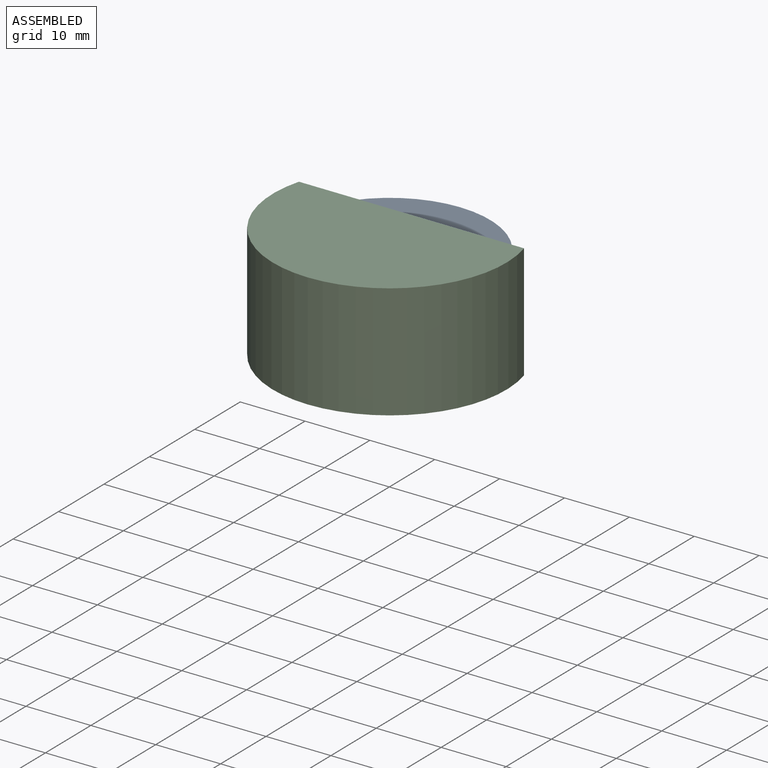
[diagram: assembled view]
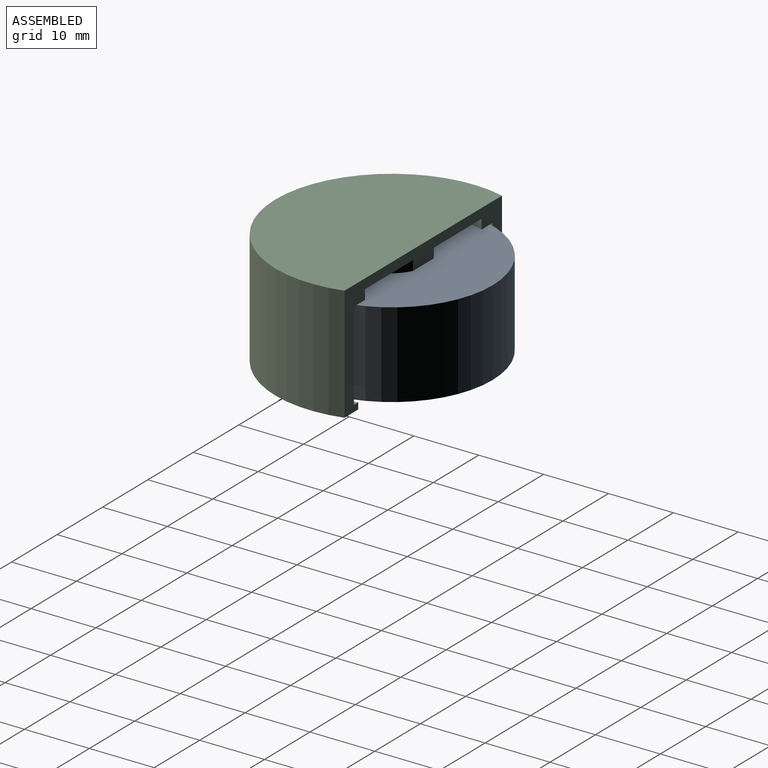
[diagram: assembled view, second angle]
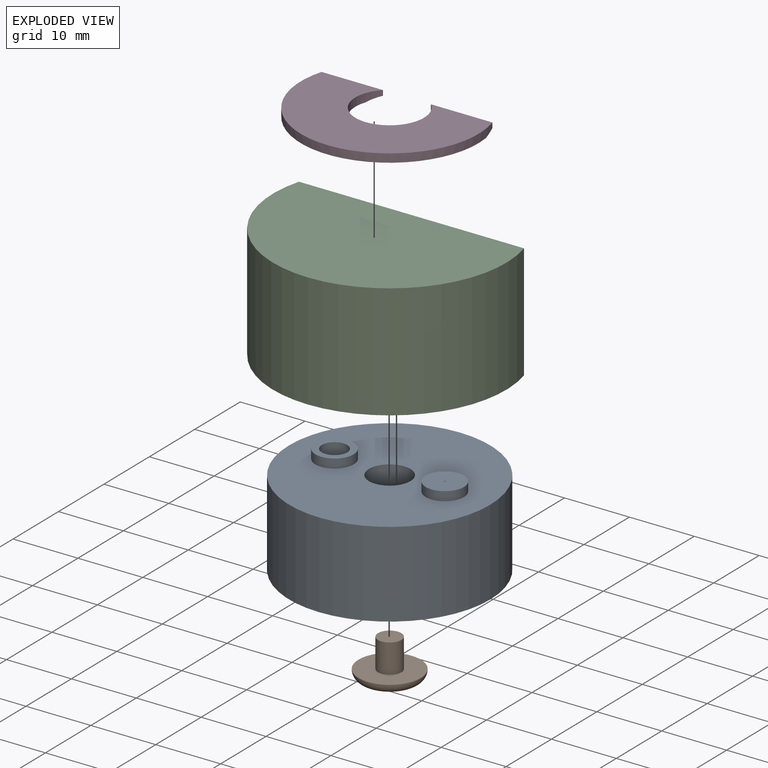
[diagram: exploded view]
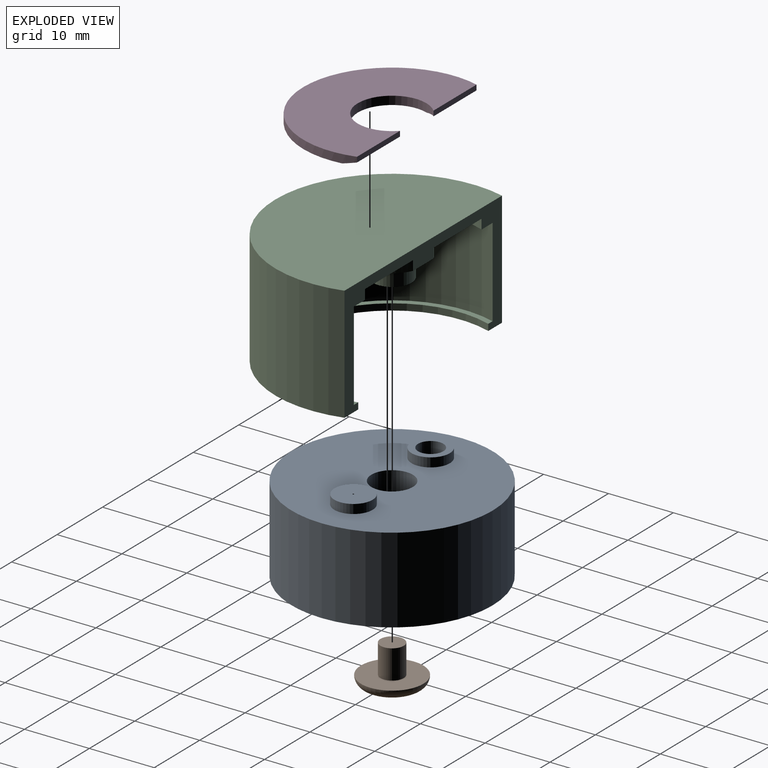
[diagram: exploded view, second angle]
ASSEMBLY  parts=4 mates=3
PART A: 14 faces, bbox 31x31x14.6 mm
  f0: cylinder r=1.95mm len=3.9mm, axis (0,0,1), area 35.5mm2, adj f10,f13
  f1: plane 31x31mm, normal (0,0,-1), area 223.8mm2, adj f2,f12
  f2: cylinder r=15.5mm len=31mm, axis (0,0,-1), area 1285.5mm2, adj f1,f3
  f3: plane 31x31mm, normal (0,0,1), area 667.9mm2, adj f2,f4,f5,f7
  f4: cylinder r=3.2mm len=6.4mm, axis (0,0,1), area 60.3mm2, adj f3,f13
  f5: cylinder r=2.95mm len=5.9mm, axis (0,0,-1), area 25.9mm2, adj f3,f6
  f6: plane 5.9x5.9mm, normal (0,0,1), area 15.4mm2, adj f5,f9
  f7: cylinder r=2.95mm len=5.9mm, axis (0,0,-1), area 25.9mm2, adj f3,f8
  f8: plane 5.9x5.9mm, normal (0,0,1), area 27.3mm2, adj f7,f11
  f9: cylinder r=1.95mm len=4.4mm, axis (0,0,1), area 53.9mm2, adj f6,f13
  f10: plane 3.9x3.9mm, normal (0,0,-1), area 11.9mm2, adj f0,f11
  f11: cylinder r=0.12mm len=1.5mm, axis (0,0,1), area 1.2mm2, adj f8,f10
  f12: cylinder r=13mm len=26mm, axis (0,0,-1), area 833.2mm2, adj f1,f13
  f13: plane 26x26mm, normal (0,0,-1), area 474.9mm2, adj f0,f4,f9,f12
PART B: 5 faces, bbox 10.4x10.4x6 mm
  f0: cylinder r=1.8mm len=4.5mm, axis (0,0,-1), area 50.9mm2, adj f1,f3
  f1: plane 3.6x3.6mm, normal (0,0,1), area 10.2mm2, adj f0
  f2: plane 6.6x6.6mm, normal (0,0,-1), area 34.2mm2, adj f4
  f3: plane 9.6x9.6mm, normal (0,0,1), area 62.2mm2, adj f0,f4
  f4: torus R=3.3mm, axis (0,0,-1), area 63mm2, adj f2,f3
PART C: 20 faces, bbox 22.8x36x17.7 mm
  f0: cylinder r=13.7mm len=27.4mm, axis (0,0,-1), area 104.6mm2, adj f9,f10,f13,f14,f15,f16,f17
  f1: cylinder r=5.3mm len=10.6mm, axis (0,0,-1), area 55.6mm2, adj f10,f11,f13,f14,f15,f16,f17
  f2: plane 36x22.8mm, normal (0,0,1), area 679.7mm2, adj f4,f13
  f3: plane 6x6mm, normal (0,0,-1), area 15.7mm2, adj f12,f18
  f4: cylinder r=18mm len=36mm, axis (0,0,-1), area 1172.9mm2, adj f2,f5,f13
  f5: plane 36x22.8mm, normal (0,0,-1), area 179mm2, adj f4,f6,f13
  f6: cylinder r=15.1mm len=30.2mm, axis (0,0,-1), area 57.2mm2, adj f5,f7,f13
  f7: plane 32x20.8mm, normal (0,0,1), area 52.8mm2, adj f6,f8,f13
  f8: cylinder r=16mm len=32mm, axis (0,0,-1), area 822.2mm2, adj f7,f9,f13
  f9: plane 32x20.8mm, normal (0,0,-1), area 129.8mm2, adj f0,f8,f13
  f10: plane 27.4x17.5mm, normal (0,0,-1), area 317mm2, adj f0,f1,f14,f16
  f11: plane 10.6x10.1mm, normal (0,0,-1), area 58.5mm2, adj f1,f12,f13
  f12: cylinder r=3mm len=6mm, axis (0,0,-1), area 56.5mm2, adj f3,f11
  f13: plane 34.7x17.7mm, normal (-1,0,0), area 135.5mm2, adj f0,f1,f2,f4,f5,f6,f7,f8
  f14: plane 9.47x0.5mm, normal (1,0,0), area 4.7mm2, adj f0,f1,f10,f15
  f15: plane 10.92x1mm, normal (0,0,-1), area 9.9mm2, adj f0,f1,f13,f14
  f16: plane 9.47x0.5mm, normal (1,0,0), area 4.7mm2, adj f0,f1,f10,f17
  f17: plane 10.92x1mm, normal (0,0,-1), area 9.9mm2, adj f0,f1,f13,f16
  f18: cylinder r=2mm len=5mm, axis (0,0,-1), area 62.8mm2, adj f3,f19
  f19: plane 4x4mm, normal (0,0,-1), area 12.6mm2, adj f18
PART D: 8 faces, bbox 17.5x27.4x1.3 mm
  f0: cylinder r=5.3mm len=10.6mm, axis (0,0,1), area 31.4mm2, adj f1,f3,f4,f5,f6,f7
  f1: plane 9.47x0.8mm, normal (-1,0,0), area 7.6mm2, adj f0,f2,f5,f7
  f2: cylinder r=13.7mm len=27.4mm, axis (0,0,1), area 64.9mm2, adj f1,f3,f4,f5,f6,f7
  f3: plane 9.47x0.8mm, normal (-1,0,0), area 7.6mm2, adj f0,f2,f5,f6
  f4: plane 27.4x15.5mm, normal (0,0,-1), area 281.2mm2, adj f0,f2,f6,f7
  f5: plane 27.4x17.5mm, normal (0,0,1), area 317mm2, adj f0,f1,f2,f3
  f6: plane 9.89x2mm, normal (-0.24,0,-0.97), area 18.5mm2, adj f0,f2,f3,f4
  f7: plane 9.89x2mm, normal (-0.24,0,-0.97), area 18.5mm2, adj f0,f1,f2,f4
PLACE A t=(-5.97,1.48,0.05)mm fixed
PLACE B t=(-5.97,1.48,-1.45)mm
PLACE C rot(axis=(0,0,-1),90deg) t=(-5.97,1.48,-1.45)mm
PLACE D rot(axis=(0,0,-1),90deg) t=(-5.97,1.48,-1.45)mm
MATE cylindrical B.f0 <-> C.f0  axis (0,0,-1) through (-5.97,1.48,10.25)mm
MATE cylindrical C.f0 <-> D.f0  axis (0,0,-1) through (-5.97,1.48,15.25)mm
MATE cylindrical C.f0 <-> A.f2  axis (0,0,-1) through (-5.97,1.48,13.25)mm
